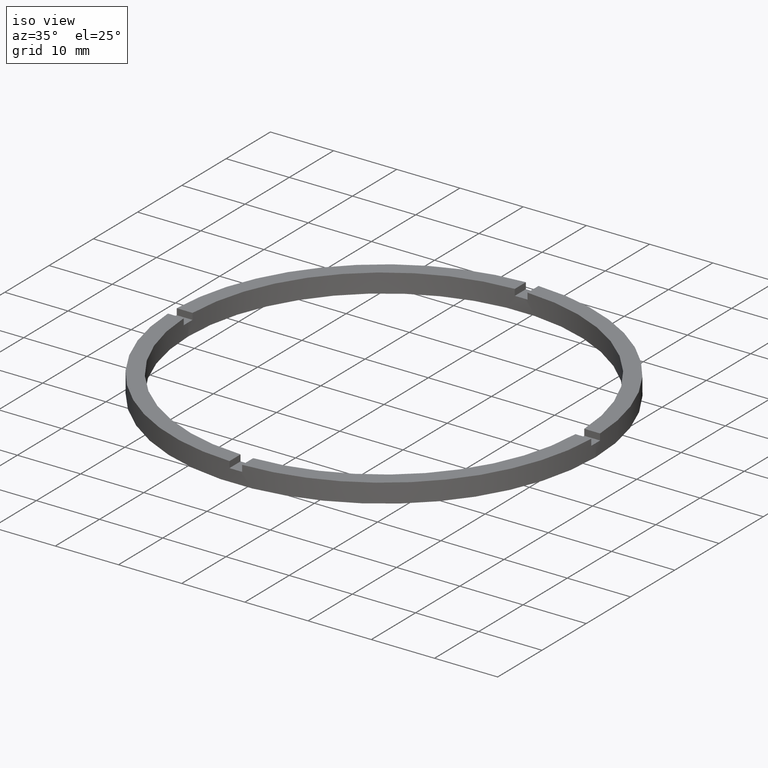
[diagram: clean part render]
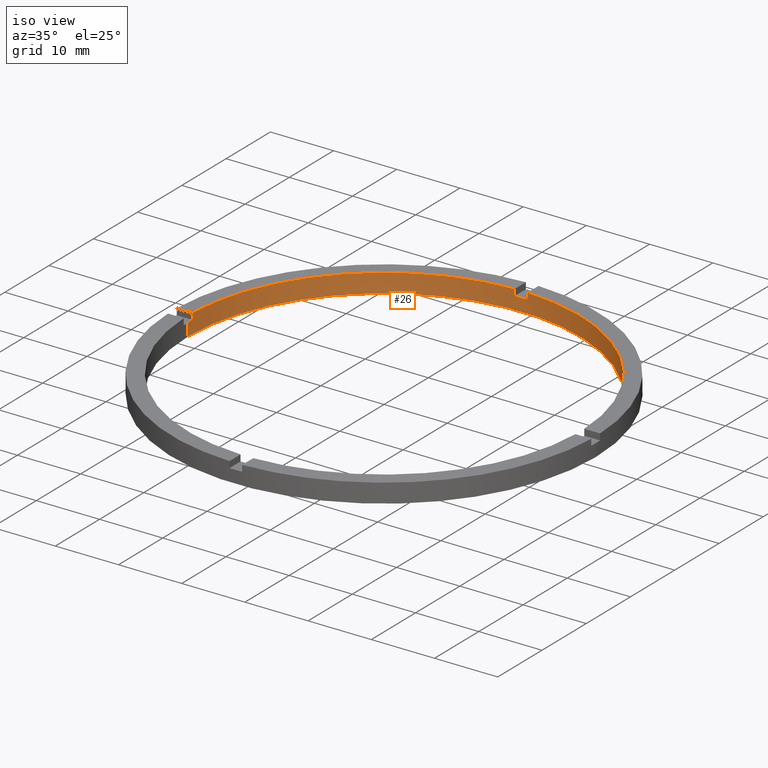
[diagram: same view with one face highlighted and labeled with its STEP entity id]
A machine part, iso view. The second image highlights one B-rep face of the part: STEP entity #26.
In plain terms, the highlighted cylindrical surface (partial cylindrical patch) has radius 31 mm, axis along (-0, -0, -1).
Its self-contained STEP definition (entity closure, byte-faithful):
#11 = CARTESIAN_POINT ( 'NONE',  ( -1.000000000000024647, 30.98386676965933617, 3.000000000000000000 ) ) ;
#17 = EDGE_CURVE ( 'NONE', #325, #544, #747, .T. ) ;
#19 = CARTESIAN_POINT ( 'NONE',  ( 0.000000000000000000, 0.000000000000000000, 3.000000000000000000 ) ) ;
#26 = ADVANCED_FACE ( 'NONE', ( #727 ), #448, .F. ) ;
#28 = CARTESIAN_POINT ( 'NONE',  ( 0.000000000000000000, 0.000000000000000000, 3.000000000000000000 ) ) ;
#31 = EDGE_CURVE ( 'NONE', #58, #782, #718, .T. ) ;
#36 = CARTESIAN_POINT ( 'NONE',  ( -30.98386676965933617, 0.9999999999999740208, 2.000000000000000000 ) ) ;
#43 = CARTESIAN_POINT ( 'NONE',  ( 30.98386676965933972, 0.9999999999998414602, 2.000000000000000000 ) ) ;
#53 = EDGE_CURVE ( 'NONE', #184, #730, #725, .T. ) ;
#58 = VERTEX_POINT ( 'NONE', #510 ) ;
#60 = CARTESIAN_POINT ( 'NONE',  ( 31.00000000000000000, 3.796405077356795115E-15, 3.000000000000000000 ) ) ;
#70 = CARTESIAN_POINT ( 'NONE',  ( 0.9999999999999753530, 30.98386676965933617, 3.000000000000000000 ) ) ;
#76 = CARTESIAN_POINT ( 'NONE',  ( 0.000000000000000000, 0.000000000000000000, 3.000000000000000000 ) ) ;
#94 = DIRECTION ( 'NONE',  ( 1.000000000000000000, 0.000000000000000000, 0.000000000000000000 ) ) ;
#98 = CIRCLE ( 'NONE', #523, 31.00000000000000000 ) ;
#122 = EDGE_CURVE ( 'NONE', #312, #591, #454, .T. ) ;
#124 = DIRECTION ( 'NONE',  ( -0.000000000000000000, -0.000000000000000000, -1.000000000000000000 ) ) ;
#127 = DIRECTION ( 'NONE',  ( -0.000000000000000000, -0.000000000000000000, -1.000000000000000000 ) ) ;
#140 = AXIS2_PLACEMENT_3D ( 'NONE', #457, #629, #262 ) ;
#145 = CARTESIAN_POINT ( 'NONE',  ( 30.98386676965933972, 0.9999999999998414602, 3.000000000000000000 ) ) ;
#149 = DIRECTION ( 'NONE',  ( 1.000000000000000000, 0.000000000000000000, 0.000000000000000000 ) ) ;
#158 = ORIENTED_EDGE ( 'NONE', *, *, #261, .T. ) ;
#175 = AXIS2_PLACEMENT_3D ( 'NONE', #441, #684, #180 ) ;
#178 = EDGE_LOOP ( 'NONE', ( #781, #158, #543, #189, #538, #440, #266, #206, #478, #239, #749, #492 ) ) ;
#180 = DIRECTION ( 'NONE',  ( 1.000000000000000000, 0.000000000000000000, 0.000000000000000000 ) ) ;
#184 = VERTEX_POINT ( 'NONE', #36 ) ;
#189 = ORIENTED_EDGE ( 'NONE', *, *, #754, .T. ) ;
#190 = VECTOR ( 'NONE', #425, 1000.000000000000000 ) ;
#196 = VECTOR ( 'NONE', #537, 1000.000000000000000 ) ;
#197 = AXIS2_PLACEMENT_3D ( 'NONE', #305, #619, #94 ) ;
#200 = VERTEX_POINT ( 'NONE', #70 ) ;
#206 = ORIENTED_EDGE ( 'NONE', *, *, #664, .T. ) ;
#232 = VECTOR ( 'NONE', #127, 1000.000000000000000 ) ;
#239 = ORIENTED_EDGE ( 'NONE', *, *, #612, .T. ) ;
#253 = EDGE_CURVE ( 'NONE', #462, #415, #715, .T. ) ;
#261 = EDGE_CURVE ( 'NONE', #58, #415, #482, .T. ) ;
#262 = DIRECTION ( 'NONE',  ( 1.000000000000000000, 0.000000000000000000, 0.000000000000000000 ) ) ;
#266 = ORIENTED_EDGE ( 'NONE', *, *, #17, .F. ) ;
#268 = CARTESIAN_POINT ( 'NONE',  ( -30.98386676965933617, 0.9999999999999740208, 3.000000000000000000 ) ) ;
#280 = CARTESIAN_POINT ( 'NONE',  ( -31.00000000000000000, 0.000000000000000000, 0.000000000000000000 ) ) ;
#287 = EDGE_CURVE ( 'NONE', #726, #200, #497, .T. ) ;
#303 = CARTESIAN_POINT ( 'NONE',  ( -30.98386676965933617, 0.9999999999999740208, 3.000000000000000000 ) ) ;
#305 = CARTESIAN_POINT ( 'NONE',  ( 0.000000000000000000, 0.000000000000000000, 2.000000000000000000 ) ) ;
#312 = VERTEX_POINT ( 'NONE', #542 ) ;
#325 = VERTEX_POINT ( 'NONE', #11 ) ;
#337 = CARTESIAN_POINT ( 'NONE',  ( 30.98386676965933972, 0.9999999999998414602, 3.000000000000000000 ) ) ;
#338 = CARTESIAN_POINT ( 'NONE',  ( 0.9999999999999753530, 30.98386676965933617, 3.000000000000000000 ) ) ;
#339 = CIRCLE ( 'NONE', #140, 31.00000000000000000 ) ;
#346 = CIRCLE ( 'NONE', #175, 31.00000000000000000 ) ;
#355 = CIRCLE ( 'NONE', #403, 31.00000000000000000 ) ;
#361 = CIRCLE ( 'NONE', #694, 31.00000000000000000 ) ;
#376 = AXIS2_PLACEMENT_3D ( 'NONE', #19, #557, #746 ) ;
#380 = DIRECTION ( 'NONE',  ( 0.000000000000000000, 0.000000000000000000, 1.000000000000000000 ) ) ;
#401 = CARTESIAN_POINT ( 'NONE',  ( 0.000000000000000000, 0.000000000000000000, 0.000000000000000000 ) ) ;
#403 = AXIS2_PLACEMENT_3D ( 'NONE', #28, #678, #429 ) ;
#409 = EDGE_CURVE ( 'NONE', #782, #591, #98, .T. ) ;
#415 = VERTEX_POINT ( 'NONE', #43 ) ;
#425 = DIRECTION ( 'NONE',  ( -0.000000000000000000, -0.000000000000000000, -1.000000000000000000 ) ) ;
#429 = DIRECTION ( 'NONE',  ( 1.000000000000000000, 0.000000000000000000, 0.000000000000000000 ) ) ;
#440 = ORIENTED_EDGE ( 'NONE', *, *, #599, .T. ) ;
#441 = CARTESIAN_POINT ( 'NONE',  ( 0.000000000000000000, 0.000000000000000000, 2.000000000000000000 ) ) ;
#448 = CYLINDRICAL_SURFACE ( 'NONE', #376, 31.00000000000000000 ) ;
#454 = LINE ( 'NONE', #501, #753 ) ;
#457 = CARTESIAN_POINT ( 'NONE',  ( 0.000000000000000000, 0.000000000000000000, 2.000000000000000000 ) ) ;
#462 = VERTEX_POINT ( 'NONE', #337 ) ;
#478 = ORIENTED_EDGE ( 'NONE', *, *, #53, .F. ) ;
#482 = CIRCLE ( 'NONE', #197, 31.00000000000000000 ) ;
#492 = ORIENTED_EDGE ( 'NONE', *, *, #409, .F. ) ;
#497 = LINE ( 'NONE', #338, #196 ) ;
#501 = CARTESIAN_POINT ( 'NONE',  ( -31.00000000000000000, 0.000000000000000000, 3.000000000000000000 ) ) ;
#510 = CARTESIAN_POINT ( 'NONE',  ( 31.00000000000000000, 3.796405077356795115E-15, 2.000000000000000000 ) ) ;
#516 = CARTESIAN_POINT ( 'NONE',  ( 0.9999999999999753530, 30.98386676965933617, 2.000000000000000000 ) ) ;
#523 = AXIS2_PLACEMENT_3D ( 'NONE', #401, #644, #149 ) ;
#537 = DIRECTION ( 'NONE',  ( 0.000000000000000000, 0.000000000000000000, 1.000000000000000000 ) ) ;
#538 = ORIENTED_EDGE ( 'NONE', *, *, #287, .F. ) ;
#542 = CARTESIAN_POINT ( 'NONE',  ( -31.00000000000000000, 0.000000000000000000, 2.000000000000000000 ) ) ;
#543 = ORIENTED_EDGE ( 'NONE', *, *, #253, .F. ) ;
#544 = VERTEX_POINT ( 'NONE', #593 ) ;
#551 = CARTESIAN_POINT ( 'NONE',  ( -1.000000000000024647, 30.98386676965933617, 3.000000000000000000 ) ) ;
#557 = DIRECTION ( 'NONE',  ( -0.000000000000000000, -0.000000000000000000, -1.000000000000000000 ) ) ;
#591 = VERTEX_POINT ( 'NONE', #280 ) ;
#593 = CARTESIAN_POINT ( 'NONE',  ( -1.000000000000024647, 30.98386676965933617, 2.000000000000000000 ) ) ;
#599 = EDGE_CURVE ( 'NONE', #726, #544, #346, .T. ) ;
#603 = DIRECTION ( 'NONE',  ( -0.000000000000000000, -0.000000000000000000, -1.000000000000000000 ) ) ;
#612 = EDGE_CURVE ( 'NONE', #184, #312, #339, .T. ) ;
#619 = DIRECTION ( 'NONE',  ( 0.000000000000000000, 0.000000000000000000, 1.000000000000000000 ) ) ;
#629 = DIRECTION ( 'NONE',  ( 0.000000000000000000, 0.000000000000000000, 1.000000000000000000 ) ) ;
#644 = DIRECTION ( 'NONE',  ( 0.000000000000000000, 0.000000000000000000, 1.000000000000000000 ) ) ;
#650 = DIRECTION ( 'NONE',  ( 1.000000000000000000, 0.000000000000000000, 0.000000000000000000 ) ) ;
#664 = EDGE_CURVE ( 'NONE', #325, #730, #355, .T. ) ;
#678 = DIRECTION ( 'NONE',  ( 0.000000000000000000, 0.000000000000000000, 1.000000000000000000 ) ) ;
#684 = DIRECTION ( 'NONE',  ( 0.000000000000000000, -0.000000000000000000, 1.000000000000000000 ) ) ;
#686 = CARTESIAN_POINT ( 'NONE',  ( 31.00000000000000000, 3.796405077356795115E-15, 0.000000000000000000 ) ) ;
#691 = DIRECTION ( 'NONE',  ( 0.000000000000000000, 0.000000000000000000, 1.000000000000000000 ) ) ;
#694 = AXIS2_PLACEMENT_3D ( 'NONE', #76, #691, #650 ) ;
#712 = VECTOR ( 'NONE', #124, 1000.000000000000000 ) ;
#715 = LINE ( 'NONE', #145, #712 ) ;
#718 = LINE ( 'NONE', #60, #232 ) ;
#722 = VECTOR ( 'NONE', #380, 1000.000000000000000 ) ;
#725 = LINE ( 'NONE', #303, #722 ) ;
#726 = VERTEX_POINT ( 'NONE', #516 ) ;
#727 = FACE_OUTER_BOUND ( 'NONE', #178, .T. ) ;
#730 = VERTEX_POINT ( 'NONE', #268 ) ;
#746 = DIRECTION ( 'NONE',  ( -1.000000000000000000, 0.000000000000000000, 0.000000000000000000 ) ) ;
#747 = LINE ( 'NONE', #551, #190 ) ;
#749 = ORIENTED_EDGE ( 'NONE', *, *, #122, .T. ) ;
#753 = VECTOR ( 'NONE', #603, 1000.000000000000000 ) ;
#754 = EDGE_CURVE ( 'NONE', #462, #200, #361, .T. ) ;
#781 = ORIENTED_EDGE ( 'NONE', *, *, #31, .F. ) ;
#782 = VERTEX_POINT ( 'NONE', #686 ) ;